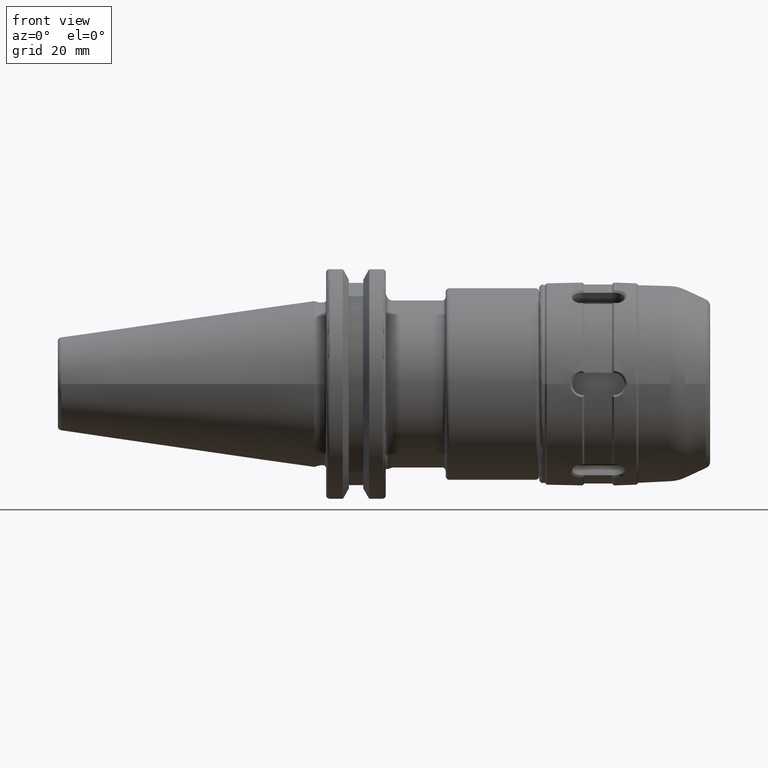
[diagram: clean part render]
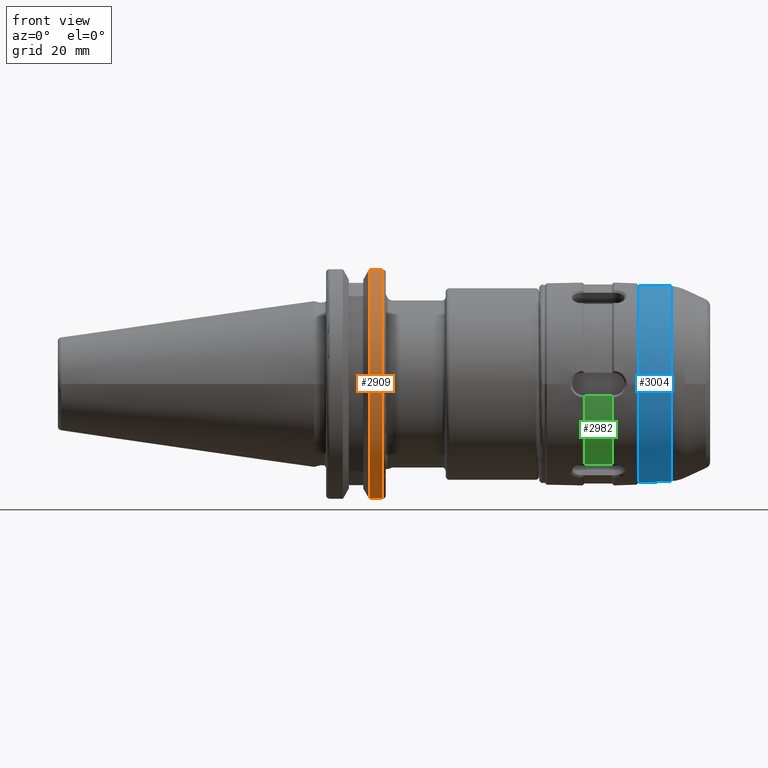
[diagram: same view with three faces highlighted in distinct colors, each labeled with its STEP entity id]
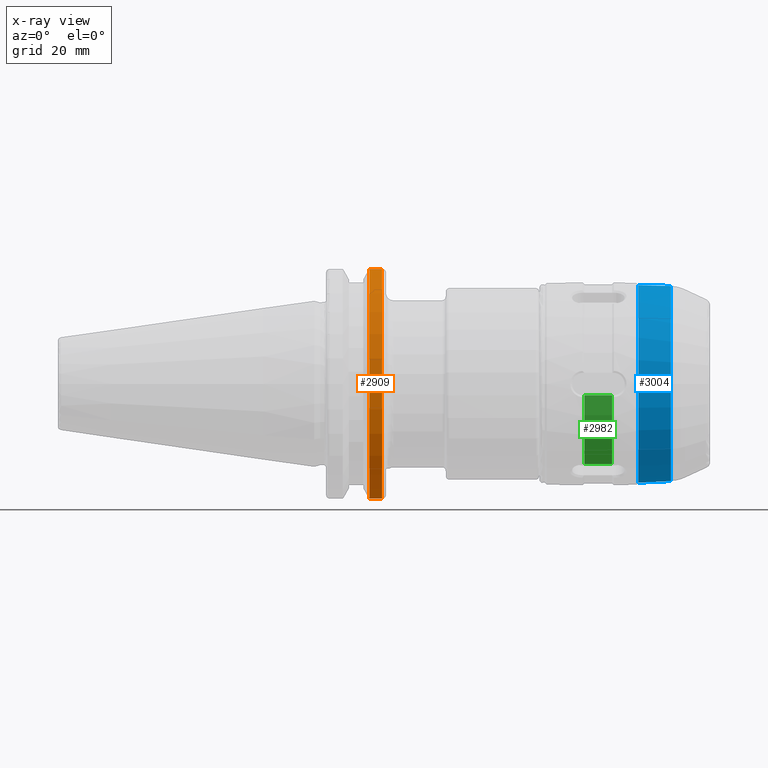
[diagram: x-ray of the same camera — body ghosted, the three highlighted faces saturated]
A machine part, front view with three faces highlighted in distinct colors.
The next image is the same camera in x-ray (body ghosted, the three faces saturated) — at least one of them is partly hidden behind the body in this view.
Their STEP definitions:

[orange] entity #2909 — the highlighted cylindrical surface (partial cylindrical patch) has radius 31.75 mm, axis along (1, 0, 0).
#188=CYLINDRICAL_SURFACE('',#3215,31.75);
#346=FACE_OUTER_BOUND('',#514,.T.);
#514=EDGE_LOOP('',(#2204,#2205,#2206,#2207));
#698=LINE('',#4761,#847);
#699=LINE('',#4767,#848);
#847=VECTOR('',#3749,10.);
#848=VECTOR('',#3752,10.);
#992=CIRCLE('',#3183,31.75);
#1006=CIRCLE('',#3216,31.75);
#1213=VERTEX_POINT('',#4570);
#1214=VERTEX_POINT('',#4579);
#1252=VERTEX_POINT('',#4760);
#1253=VERTEX_POINT('',#4766);
#1558=EDGE_CURVE('',#1213,#1214,#992,.T.);
#1615=EDGE_CURVE('',#1214,#1252,#698,.T.);
#1617=EDGE_CURVE('',#1253,#1213,#699,.T.);
#1618=EDGE_CURVE('',#1253,#1252,#1006,.T.);
#2204=ORIENTED_EDGE('',*,*,#1558,.F.);
#2205=ORIENTED_EDGE('',*,*,#1617,.F.);
#2206=ORIENTED_EDGE('',*,*,#1618,.T.);
#2207=ORIENTED_EDGE('',*,*,#1615,.F.);
#2909=ADVANCED_FACE('',(#346),#188,.T.);
#3183=AXIS2_PLACEMENT_3D('',#4580,#3659,#3660);
#3215=AXIS2_PLACEMENT_3D('',#4765,#3750,#3751);
#3216=AXIS2_PLACEMENT_3D('',#4768,#3753,#3754);
#3659=DIRECTION('center_axis',(1.,0.,0.));
#3660=DIRECTION('ref_axis',(0.,-1.,1.60812264967664E-16));
#3749=DIRECTION('',(-1.,0.,0.));
#3750=DIRECTION('center_axis',(1.,0.,0.));
#3751=DIRECTION('ref_axis',(0.,-1.,1.22464679914735E-16));
#3752=DIRECTION('',(1.,0.,0.));
#3753=DIRECTION('center_axis',(1.,0.,0.));
#3754=DIRECTION('ref_axis',(0.,0.,-1.));
#4570=CARTESIAN_POINT('',(18.05,-8.67204822802685,30.5427254764662));
#4579=CARTESIAN_POINT('',(18.05,-8.67204822802686,-30.5427254764662));
#4580=CARTESIAN_POINT('Origin',(18.05,0.,0.));
#4760=CARTESIAN_POINT('',(14.6602667690756,-8.67204822802686,-30.5427254764662));
#4761=CARTESIAN_POINT('',(16.8551333845378,-8.67204822802686,-30.5427254764662));
#4765=CARTESIAN_POINT('Origin',(16.8551333845378,0.,0.));
#4766=CARTESIAN_POINT('',(14.6602667690756,-8.67204822802685,30.5427254764662));
#4767=CARTESIAN_POINT('',(16.8551333845378,-8.67204822802685,30.5427254764662));
#4768=CARTESIAN_POINT('Origin',(14.6602667690756,0.,0.));

[blue] entity #3004 — the highlighted conical surface has half-angle 2.897 deg.
#441=FACE_OUTER_BOUND('',#613,.T.);
#613=EDGE_LOOP('',(#2744,#2745,#2746,#2747,#2748,#2749,#2750));
#775=LINE('',#6932,#924);
#924=VECTOR('',#4176,26.2318075471587);
#1089=CIRCLE('',#3381,26.0623226863153);
#1090=CIRCLE('',#3382,26.0623226863153);
#1091=CIRCLE('',#3383,26.0623226863153);
#1096=CIRCLE('',#3390,26.5);
#1097=CIRCLE('',#3391,26.5);
#1414=VERTEX_POINT('',#6914);
#1415=VERTEX_POINT('',#6916);
#1416=VERTEX_POINT('',#6918);
#1420=VERTEX_POINT('',#6931);
#1421=VERTEX_POINT('',#6933);
#1864=EDGE_CURVE('',#1414,#1415,#1089,.T.);
#1865=EDGE_CURVE('',#1415,#1416,#1090,.T.);
#1866=EDGE_CURVE('',#1416,#1414,#1091,.T.);
#1872=EDGE_CURVE('',#1415,#1420,#775,.T.);
#1873=EDGE_CURVE('',#1420,#1421,#1096,.T.);
#1874=EDGE_CURVE('',#1421,#1420,#1097,.T.);
#2744=ORIENTED_EDGE('',*,*,#1866,.F.);
#2745=ORIENTED_EDGE('',*,*,#1865,.F.);
#2746=ORIENTED_EDGE('',*,*,#1872,.T.);
#2747=ORIENTED_EDGE('',*,*,#1873,.T.);
#2748=ORIENTED_EDGE('',*,*,#1874,.T.);
#2749=ORIENTED_EDGE('',*,*,#1872,.F.);
#2750=ORIENTED_EDGE('',*,*,#1864,.F.);
#2857=CONICAL_SURFACE('',#3389,26.2318075471587,0.0505592250733073);
#3004=ADVANCED_FACE('',(#441),#2857,.T.);
#3381=AXIS2_PLACEMENT_3D('',#6917,#4157,#4158);
#3382=AXIS2_PLACEMENT_3D('',#6919,#4159,#4160);
#3383=AXIS2_PLACEMENT_3D('',#6920,#4161,#4162);
#3389=AXIS2_PLACEMENT_3D('',#6930,#4174,#4175);
#3390=AXIS2_PLACEMENT_3D('',#6934,#4177,#4178);
#3391=AXIS2_PLACEMENT_3D('',#6935,#4179,#4180);
#4157=DIRECTION('center_axis',(1.,0.,0.));
#4158=DIRECTION('ref_axis',(0.,-1.,3.06161699786838E-17));
#4159=DIRECTION('center_axis',(1.,0.,0.));
#4160=DIRECTION('ref_axis',(0.,-1.,3.06161699786838E-17));
#4161=DIRECTION('center_axis',(1.,0.,0.));
#4162=DIRECTION('ref_axis',(0.,-1.,3.06161699786838E-17));
#4174=DIRECTION('center_axis',(-1.,0.,0.));
#4175=DIRECTION('ref_axis',(0.,1.,0.));
#4176=DIRECTION('',(-0.998722154620904,-0.0505376876140922,-6.18908173729069E-18));
#4177=DIRECTION('center_axis',(1.,0.,0.));
#4178=DIRECTION('ref_axis',(0.,0.,-1.));
#4179=DIRECTION('center_axis',(1.,0.,0.));
#4180=DIRECTION('ref_axis',(0.,0.,-1.));
#6914=CARTESIAN_POINT('',(35.0493476529772,-3.19171400561415E-15,26.0623226863153));
#6916=CARTESIAN_POINT('',(35.0493476529772,-26.0623226863153,-3.19171400561415E-15));
#6917=CARTESIAN_POINT('Origin',(35.0493476529772,0.,-3.98964250701769E-15));
#6918=CARTESIAN_POINT('',(35.0493476529772,26.0623226863153,-1.59585700280707E-15));
#6919=CARTESIAN_POINT('Origin',(35.0493476529772,0.,-3.98964250701769E-15));
#6920=CARTESIAN_POINT('Origin',(35.0493476529772,0.,-3.98964250701769E-15));
#6930=CARTESIAN_POINT('Origin',(31.7,0.,0.));
#6931=CARTESIAN_POINT('',(26.4,-26.5,-3.24531401774049E-15));
#6932=CARTESIAN_POINT('',(31.7,-26.2318075471587,-3.21246991484773E-15));
#6933=CARTESIAN_POINT('',(26.4,26.5,0.));
#6934=CARTESIAN_POINT('Origin',(26.4,0.,0.));
#6935=CARTESIAN_POINT('Origin',(26.4,0.,0.));

[green] entity #2982 — the highlighted cylindrical surface (partial cylindrical patch) has radius 26.5 mm, axis along (1, 0, 0).
#210=CYLINDRICAL_SURFACE('',#3335,26.5);
#419=FACE_OUTER_BOUND('',#589,.T.);
#589=EDGE_LOOP('',(#2621,#2622,#2623,#2624));
#715=LINE('',#5524,#864);
#753=LINE('',#6527,#902);
#864=VECTOR('',#3900,10.);
#902=VECTOR('',#4004,10.);
#1043=CIRCLE('',#3283,26.5);
#1044=CIRCLE('',#3285,26.5);
#1314=VERTEX_POINT('',#5519);
#1315=VERTEX_POINT('',#5523);
#1321=VERTEX_POINT('',#5561);
#1323=VERTEX_POINT('',#5666);
#1706=EDGE_CURVE('',#1315,#1314,#715,.T.);
#1714=EDGE_CURVE('',#1321,#1314,#1043,.T.);
#1718=EDGE_CURVE('',#1323,#1315,#1044,.T.);
#1796=EDGE_CURVE('',#1321,#1323,#753,.T.);
#2621=ORIENTED_EDGE('',*,*,#1706,.T.);
#2622=ORIENTED_EDGE('',*,*,#1714,.F.);
#2623=ORIENTED_EDGE('',*,*,#1796,.T.);
#2624=ORIENTED_EDGE('',*,*,#1718,.T.);
#2982=ADVANCED_FACE('',(#419),#210,.T.);
#3283=AXIS2_PLACEMENT_3D('',#5565,#3907,#3908);
#3285=AXIS2_PLACEMENT_3D('',#5667,#3911,#3912);
#3335=AXIS2_PLACEMENT_3D('',#6592,#4051,#4052);
#3900=DIRECTION('',(1.,0.,0.));
#3907=DIRECTION('center_axis',(1.,0.,0.));
#3908=DIRECTION('ref_axis',(0.,0.,-1.));
#3911=DIRECTION('center_axis',(1.,0.,0.));
#3912=DIRECTION('ref_axis',(0.,0.,-1.));
#4004=DIRECTION('',(-1.,0.,0.));
#4051=DIRECTION('center_axis',(1.,0.,0.));
#4052=DIRECTION('ref_axis',(0.,1.,0.));
#5519=CARTESIAN_POINT('',(19.4,-15.7628967570349,-21.3021380576471));
#5523=CARTESIAN_POINT('',(12.,-15.7628967570349,-21.3021380576471));
#5524=CARTESIAN_POINT('',(15.7,-15.7628967570349,-21.3021380576471));
#5561=CARTESIAN_POINT('',(19.4,-26.3296410913632,-3.));
#5565=CARTESIAN_POINT('Origin',(19.4,0.,0.));
#5666=CARTESIAN_POINT('',(12.,-26.3296410913632,-3.));
#5667=CARTESIAN_POINT('Origin',(12.,0.,0.));
#6527=CARTESIAN_POINT('',(15.7,-26.3296410913632,-2.99999999999999));
#6592=CARTESIAN_POINT('Origin',(15.7,0.,0.));